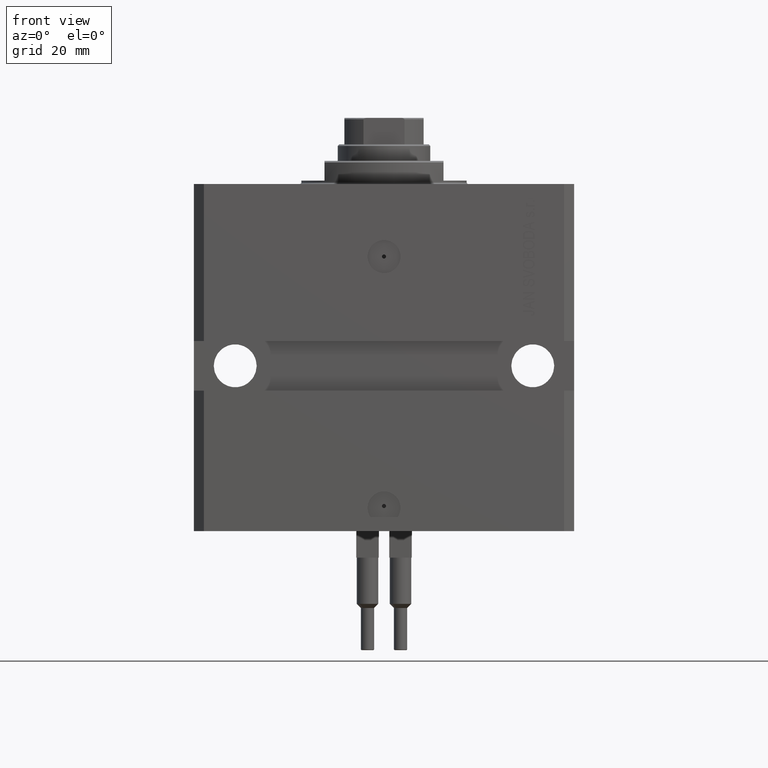
[diagram: clean part render]
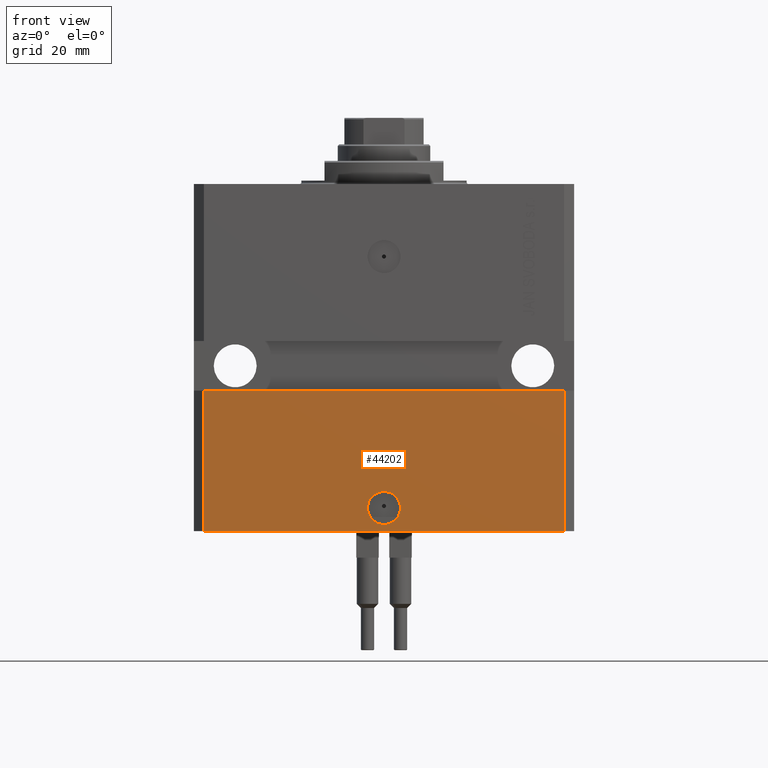
[diagram: same view with one face highlighted and labeled with its STEP entity id]
A machine part, front view. The second image highlights one B-rep face of the part: STEP entity #44202.
In plain terms, the highlighted planar face has unit normal (0, -1, 0).
Its self-contained STEP definition (entity closure, byte-faithful):
#1283 = VERTEX_POINT ( 'NONE', #7797 ) ;
#1783 = CARTESIAN_POINT ( 'NONE',  ( 54.50000000000000711, -44.99999999999998579, -105.0000000000000000 ) ) ;
#1917 = CARTESIAN_POINT ( 'NONE',  ( -54.50000000000000711, -45.00000000000000000, -62.50000000000000000 ) ) ;
#2612 = CARTESIAN_POINT ( 'NONE',  ( -54.50000000000000711, -45.00000000000000000, -105.0000000000000000 ) ) ;
#3033 = DIRECTION ( 'NONE',  ( 1.000000000000000000, 0.000000000000000000, 0.000000000000000000 ) ) ;
#3332 = EDGE_CURVE ( 'NONE', #34499, #16199, #27543, .T. ) ;
#3847 = VERTEX_POINT ( 'NONE', #31655 ) ;
#3983 = CARTESIAN_POINT ( 'NONE',  ( 54.50000000000000711, -44.99999999999998579, -105.0000000000000000 ) ) ;
#4302 = AXIS2_PLACEMENT_3D ( 'NONE', #19786, #7904, #38507 ) ;
#5692 = CARTESIAN_POINT ( 'NONE',  ( -54.50000000000000711, -45.00000000000000000, -105.0000000000000000 ) ) ;
#6235 = VECTOR ( 'NONE', #22202, 1000.000000000000000 ) ;
#6901 = DIRECTION ( 'NONE',  ( 1.273191542001326317E-16, -1.000000000000000000, 0.000000000000000000 ) ) ;
#7797 = CARTESIAN_POINT ( 'NONE',  ( -5.000000000000000000, -44.99999999999999289, -97.99999999999998579 ) ) ;
#7904 = DIRECTION ( 'NONE',  ( 1.176083712526788232E-16, -1.000000000000000000, 0.000000000000000000 ) ) ;
#8051 = CARTESIAN_POINT ( 'NONE',  ( -54.50000000000000711, -45.00000000000000000, -105.0000000000000000 ) ) ;
#9721 = ORIENTED_EDGE ( 'NONE', *, *, #35877, .F. ) ;
#10116 = DIRECTION ( 'NONE',  ( 1.176083712526788232E-16, -1.000000000000000000, 0.000000000000000000 ) ) ;
#14051 = ORIENTED_EDGE ( 'NONE', *, *, #24054, .T. ) ;
#14251 = EDGE_LOOP ( 'NONE', ( #9721, #18446, #35890, #14051 ) ) ;
#14734 = FACE_BOUND ( 'NONE', #44873, .T. ) ;
#14985 = FACE_OUTER_BOUND ( 'NONE', #14251, .T. ) ;
#16199 = VERTEX_POINT ( 'NONE', #3983 ) ;
#17904 = AXIS2_PLACEMENT_3D ( 'NONE', #26053, #10116, #3033 ) ;
#18027 = DIRECTION ( 'NONE',  ( 1.000000000000000000, 1.273191542001326317E-16, 0.000000000000000000 ) ) ;
#18247 = DIRECTION ( 'NONE',  ( 1.000000000000000000, 1.206764157201257045E-16, 0.000000000000000000 ) ) ;
#18263 = EDGE_CURVE ( 'NONE', #3847, #1283, #20329, .T. ) ;
#18446 = ORIENTED_EDGE ( 'NONE', *, *, #36990, .F. ) ;
#18516 = VECTOR ( 'NONE', #20198, 1000.000000000000000 ) ;
#19786 = CARTESIAN_POINT ( 'NONE',  ( 5.729361939005967538E-15, -44.99999999999999289, -97.99999999999998579 ) ) ;
#20198 = DIRECTION ( 'NONE',  ( 1.000000000000000000, 1.273191542001326317E-16, 0.000000000000000000 ) ) ;
#20329 = CIRCLE ( 'NONE', #17904, 5.000000000000006217 ) ;
#22202 = DIRECTION ( 'NONE',  ( 0.000000000000000000, 0.000000000000000000, 1.000000000000000000 ) ) ;
#23643 = EDGE_CURVE ( 'NONE', #1283, #3847, #39023, .T. ) ;
#24054 = EDGE_CURVE ( 'NONE', #16199, #42061, #44003, .T. ) ;
#25846 = CARTESIAN_POINT ( 'NONE',  ( -57.50000000000000711, -45.00000000000000000, -62.50000000000000000 ) ) ;
#26012 = LINE ( 'NONE', #34341, #6235 ) ;
#26053 = CARTESIAN_POINT ( 'NONE',  ( 5.729361939005967538E-15, -44.99999999999999289, -97.99999999999998579 ) ) ;
#27543 = LINE ( 'NONE', #8051, #18516 ) ;
#28884 = ORIENTED_EDGE ( 'NONE', *, *, #23643, .F. ) ;
#29600 = VECTOR ( 'NONE', #18247, 1000.000000000000000 ) ;
#31655 = CARTESIAN_POINT ( 'NONE',  ( 5.000000000000012434, -44.99999999999999289, -97.99999999999998579 ) ) ;
#32575 = CARTESIAN_POINT ( 'NONE',  ( 54.49999999999997868, -44.99999999999998579, -62.50000000000000000 ) ) ;
#34341 = CARTESIAN_POINT ( 'NONE',  ( -54.50000000000000711, -45.00000000000000000, -105.0000000000000000 ) ) ;
#34499 = VERTEX_POINT ( 'NONE', #5692 ) ;
#35877 = EDGE_CURVE ( 'NONE', #39248, #42061, #37968, .T. ) ;
#35890 = ORIENTED_EDGE ( 'NONE', *, *, #3332, .T. ) ;
#36990 = EDGE_CURVE ( 'NONE', #34499, #39248, #26012, .T. ) ;
#37968 = LINE ( 'NONE', #25846, #29600 ) ;
#38507 = DIRECTION ( 'NONE',  ( 1.000000000000000000, 0.000000000000000000, 0.000000000000000000 ) ) ;
#39023 = CIRCLE ( 'NONE', #4302, 5.000000000000006217 ) ;
#39248 = VERTEX_POINT ( 'NONE', #1917 ) ;
#41924 = AXIS2_PLACEMENT_3D ( 'NONE', #2612, #6901, #18027 ) ;
#42061 = VERTEX_POINT ( 'NONE', #32575 ) ;
#44003 = LINE ( 'NONE', #1783, #47122 ) ;
#44202 = ADVANCED_FACE ( 'NONE', ( #14734, #14985 ), #49397, .T. ) ;
#44873 = EDGE_LOOP ( 'NONE', ( #47417, #28884 ) ) ;
#47122 = VECTOR ( 'NONE', #47310, 1000.000000000000000 ) ;
#47310 = DIRECTION ( 'NONE',  ( 0.000000000000000000, 0.000000000000000000, 1.000000000000000000 ) ) ;
#47417 = ORIENTED_EDGE ( 'NONE', *, *, #18263, .F. ) ;
#49397 = PLANE ( 'NONE',  #41924 ) ;